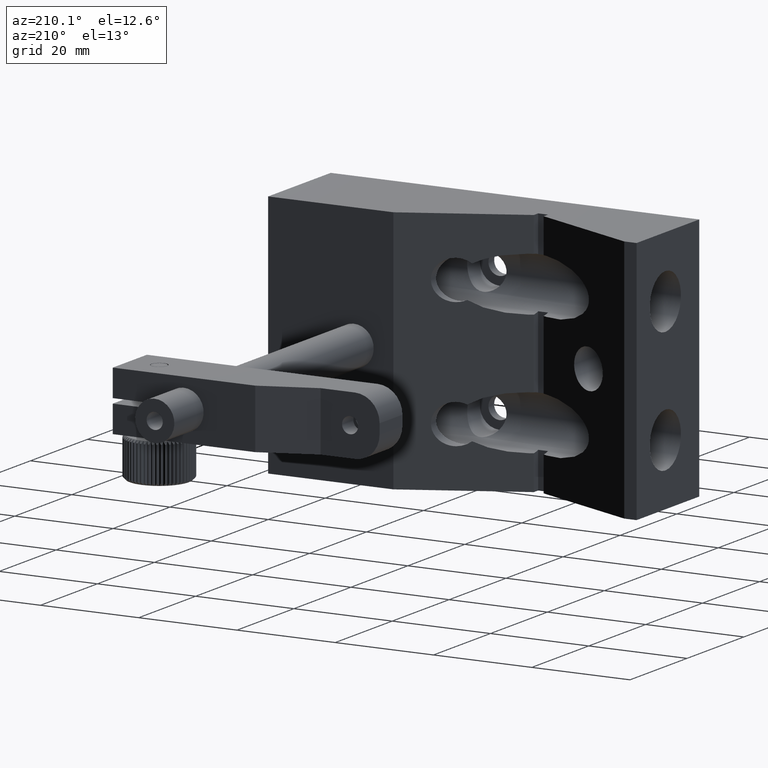
[diagram: clean part render]
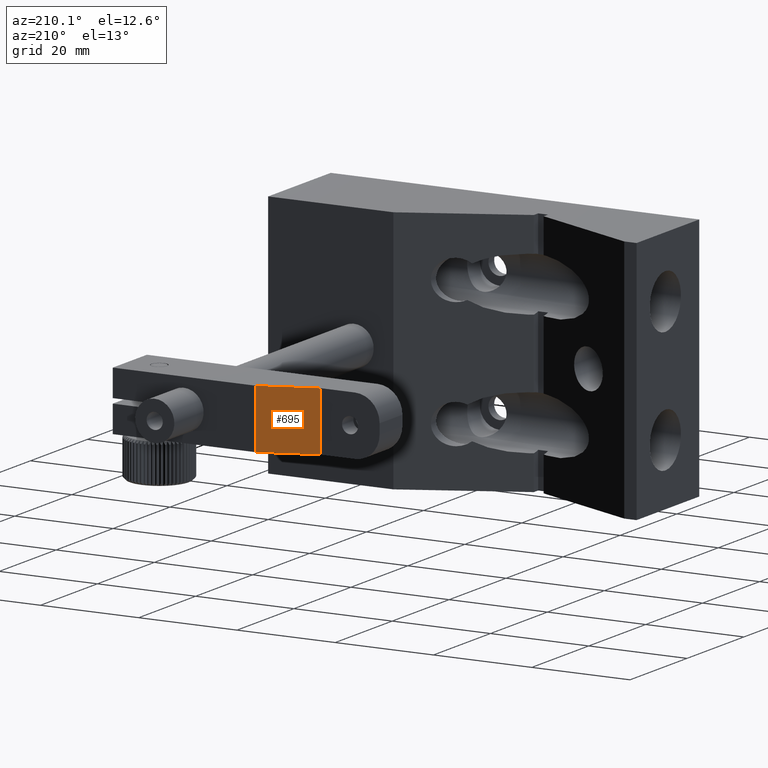
[diagram: same view with one face highlighted and labeled with its STEP entity id]
A machine part, auxiliary view. The second image highlights one B-rep face of the part: STEP entity #695.
In plain terms, the highlighted planar face has unit normal (0.342, -0.9397, 0).
Its self-contained STEP definition (entity closure, byte-faithful):
#189 = PLANE ( 'NONE',  #7154 ) ;
#262 = DIRECTION ( 'NONE',  ( -0.0000000000000000000, -0.0000000000000000000, -1.000000000000000000 ) ) ;
#695 = ADVANCED_FACE ( 'NONE', ( #8231 ), #189, .F. ) ;
#893 = VERTEX_POINT ( 'NONE', #9204 ) ;
#988 = VERTEX_POINT ( 'NONE', #11478 ) ;
#1240 = DIRECTION ( 'NONE',  ( 0.9396926207859078700, 0.3420201433256702700, 0.0000000000000000000 ) ) ;
#2454 = LINE ( 'NONE', #6970, #5770 ) ;
#3329 = DIRECTION ( 'NONE',  ( 0.3420201433256702700, -0.9396926207859078700, 0.0000000000000000000 ) ) ;
#3561 = EDGE_CURVE ( 'NONE', #9556, #988, #3990, .T. ) ;
#3726 = VERTEX_POINT ( 'NONE', #13135 ) ;
#3898 = ORIENTED_EDGE ( 'NONE', *, *, #5385, .F. ) ;
#3990 = LINE ( 'NONE', #11976, #9532 ) ;
#4614 = VECTOR ( 'NONE', #9131, 1000.000000000000100 ) ;
#5384 = EDGE_CURVE ( 'NONE', #3726, #988, #13806, .T. ) ;
#5385 = EDGE_CURVE ( 'NONE', #893, #9556, #2454, .T. ) ;
#5485 = EDGE_LOOP ( 'NONE', ( #13448, #11615, #3898, #6752 ) ) ;
#5770 = VECTOR ( 'NONE', #8099, 1000.000000000000100 ) ;
#6078 = EDGE_CURVE ( 'NONE', #893, #3726, #6265, .T. ) ;
#6265 = LINE ( 'NONE', #13499, #6785 ) ;
#6752 = ORIENTED_EDGE ( 'NONE', *, *, #6078, .T. ) ;
#6785 = VECTOR ( 'NONE', #9049, 1000.000000000000000 ) ;
#6970 = CARTESIAN_POINT ( 'NONE',  ( -8.713966979027247800, 71.14249319889783900, 6.000000000000003600 ) ) ;
#7154 = AXIS2_PLACEMENT_3D ( 'NONE', #7674, #3329, #1240 ) ;
#7674 = CARTESIAN_POINT ( 'NONE',  ( -8.713966979027247800, 71.14249319889783900, 6.000000000000003600 ) ) ;
#8099 = DIRECTION ( 'NONE',  ( -0.9396926207859078700, -0.3420201433256702700, -0.0000000000000000000 ) ) ;
#8231 = FACE_OUTER_BOUND ( 'NONE', #5485, .T. ) ;
#9049 = DIRECTION ( 'NONE',  ( -0.0000000000000000000, -0.0000000000000000000, -1.000000000000000000 ) ) ;
#9131 = DIRECTION ( 'NONE',  ( -0.9396926207859078700, -0.3420201433256702700, -0.0000000000000000000 ) ) ;
#9204 = CARTESIAN_POINT ( 'NONE',  ( 2.275942698791187700, 75.14249319889783900, 6.000000000000003600 ) ) ;
#9532 = VECTOR ( 'NONE', #262, 1000.000000000000000 ) ;
#9556 = VERTEX_POINT ( 'NONE', #11309 ) ;
#11309 = CARTESIAN_POINT ( 'NONE',  ( -8.713966979027247800, 71.14249319889783900, 6.000000000000003600 ) ) ;
#11478 = CARTESIAN_POINT ( 'NONE',  ( -8.713966979027247800, 71.14249319889783900, -5.999999999999996400 ) ) ;
#11615 = ORIENTED_EDGE ( 'NONE', *, *, #3561, .F. ) ;
#11976 = CARTESIAN_POINT ( 'NONE',  ( -8.713966979027247800, 71.14249319889783900, 6.000000000000003600 ) ) ;
#13135 = CARTESIAN_POINT ( 'NONE',  ( 2.275942698791187700, 75.14249319889783900, -5.999999999999996400 ) ) ;
#13448 = ORIENTED_EDGE ( 'NONE', *, *, #5384, .T. ) ;
#13484 = CARTESIAN_POINT ( 'NONE',  ( -8.713966979027247800, 71.14249319889783900, -5.999999999999996400 ) ) ;
#13499 = CARTESIAN_POINT ( 'NONE',  ( 2.275942698791187700, 75.14249319889783900, 6.000000000000003600 ) ) ;
#13806 = LINE ( 'NONE', #13484, #4614 ) ;